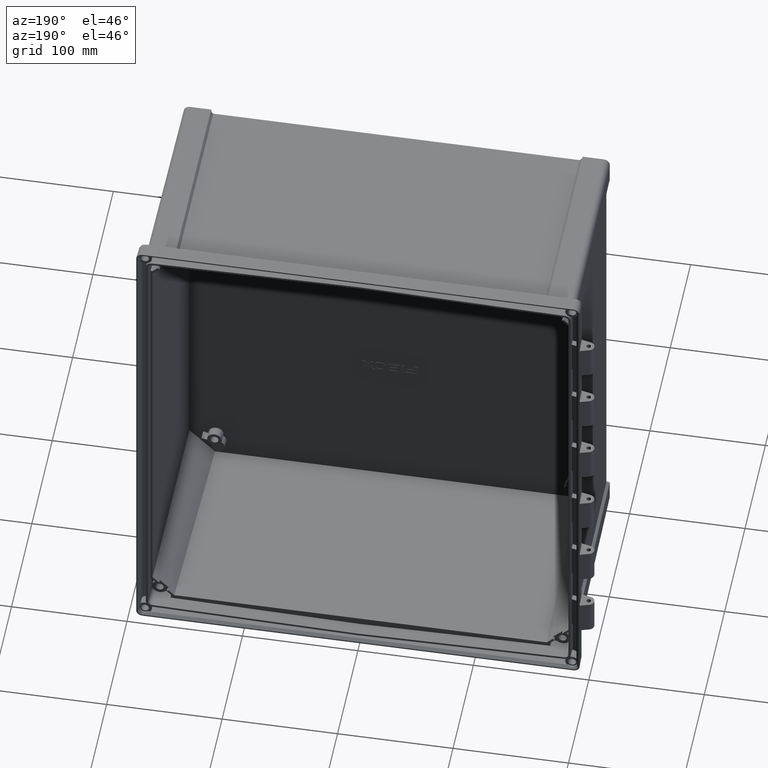
[diagram: clean part render]
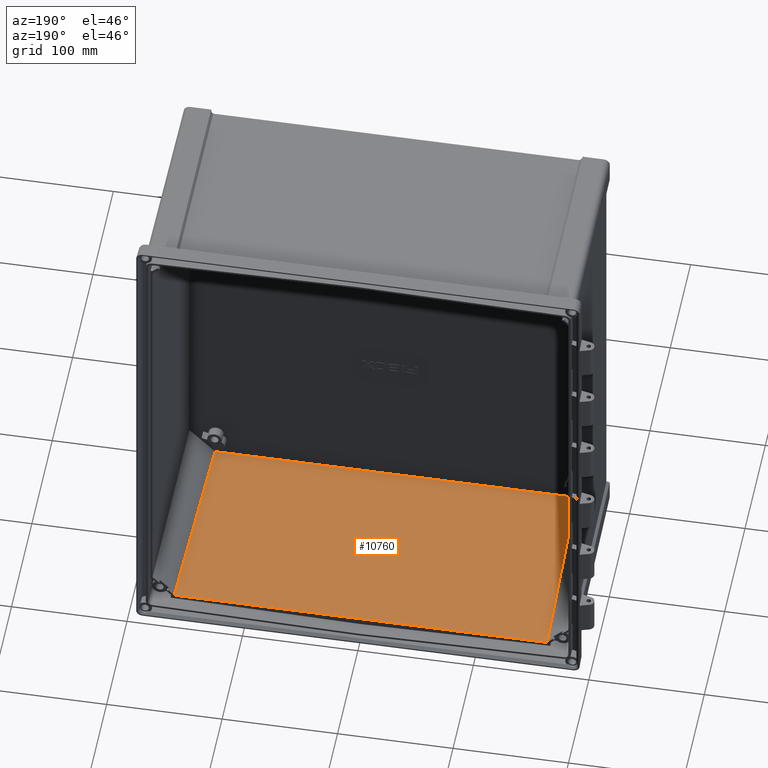
[diagram: same view with one face highlighted and labeled with its STEP entity id]
A machine part, auxiliary view. The second image highlights one B-rep face of the part: STEP entity #10760.
In plain terms, the highlighted planar face has unit normal (0, -0.0087, -1).
Its self-contained STEP definition (entity closure, byte-faithful):
#393 = VERTEX_POINT ( 'NONE', #8348 ) ;
#442 = ORIENTED_EDGE ( 'NONE', *, *, #10921, .T. ) ;
#578 = LINE ( 'NONE', #13766, #5664 ) ;
#1318 = EDGE_CURVE ( 'NONE', #16631, #10464, #7284, .T. ) ;
#2425 = LINE ( 'NONE', #14302, #16530 ) ;
#2750 = CARTESIAN_POINT ( 'NONE',  ( 156.5170099140173400, -185.4000000000000100, -203.6819168607589700 ) ) ;
#3100 = CARTESIAN_POINT ( 'NONE',  ( 30.22312260605986000, -6782.681674747083000, -146.1083119069144200 ) ) ;
#3609 = CARTESIAN_POINT ( 'NONE',  ( -183.5000000000001700, -185.4000000000000100, -203.6819168607589700 ) ) ;
#4504 = FACE_OUTER_BOUND ( 'NONE', #7448, .T. ) ;
#4772 = EDGE_CURVE ( 'NONE', #13230, #393, #2425, .T. ) ;
#5328 = AXIS2_PLACEMENT_3D ( 'NONE', #13564, #12299, #5924 ) ;
#5377 = EDGE_CURVE ( 'NONE', #393, #10464, #578, .T. ) ;
#5529 = VECTOR ( 'NONE', #12317, 1000.000000000000100 ) ;
#5664 = VECTOR ( 'NONE', #6109, 1000.000000000000100 ) ;
#5924 = DIRECTION ( 'NONE',  ( 0.0000000000000000000, 0.9999619230641713100, -0.008726535498373953800 ) ) ;
#6109 = DIRECTION ( 'NONE',  ( -0.02829320860422553100, -0.9995616053478232300, 0.008723041978589085600 ) ) ;
#6886 = VECTOR ( 'NONE', #12419, 1000.000000000000000 ) ;
#7284 = LINE ( 'NONE', #3609, #6886 ) ;
#7339 = CARTESIAN_POINT ( 'NONE',  ( -161.3894390573053400, -13.26352849845436800, -205.1841290895552600 ) ) ;
#7448 = EDGE_LOOP ( 'NONE', ( #7626, #8022, #442, #15582 ) ) ;
#7626 = ORIENTED_EDGE ( 'NONE', *, *, #5377, .F. ) ;
#8022 = ORIENTED_EDGE ( 'NONE', *, *, #4772, .F. ) ;
#8348 = CARTESIAN_POINT ( 'NONE',  ( 161.3894390574940000, -13.26352849845259200, -205.1841290895164900 ) ) ;
#10464 = VERTEX_POINT ( 'NONE', #2750 ) ;
#10760 = ADVANCED_FACE ( 'NONE', ( #4504 ), #15045, .F. ) ;
#10848 = CARTESIAN_POINT ( 'NONE',  ( -156.5170099139370700, -185.4000000000000100, -203.6819168607589700 ) ) ;
#10921 = EDGE_CURVE ( 'NONE', #13230, #16631, #10924, .T. ) ;
#10924 = LINE ( 'NONE', #3100, #5529 ) ;
#12299 = DIRECTION ( 'NONE',  ( 0.0000000000000000000, -0.008726535498373953800, -0.9999619230641713100 ) ) ;
#12317 = DIRECTION ( 'NONE',  ( 0.02829320860422553100, -0.9995616053478232300, 0.008723041978589085600 ) ) ;
#12419 = DIRECTION ( 'NONE',  ( 1.000000000000000000, 0.0000000000000000000, 0.0000000000000000000 ) ) ;
#13230 = VERTEX_POINT ( 'NONE', #7339 ) ;
#13564 = CARTESIAN_POINT ( 'NONE',  ( -183.5000000000001700, 0.02792491359479665200, -205.3001218461946800 ) ) ;
#13766 = CARTESIAN_POINT ( 'NONE',  ( 191.2566690975552300, 1041.906170482868400, -214.3924555493370600 ) ) ;
#14302 = CARTESIAN_POINT ( 'NONE',  ( -183.5000000000001700, -13.26352849845282500, -205.1841290895207000 ) ) ;
#15045 = PLANE ( 'NONE',  #5328 ) ;
#15491 = DIRECTION ( 'NONE',  ( 1.000000000000000000, -0.0000000000000000000, -0.0000000000000000000 ) ) ;
#15582 = ORIENTED_EDGE ( 'NONE', *, *, #1318, .T. ) ;
#16530 = VECTOR ( 'NONE', #15491, 1000.000000000000000 ) ;
#16631 = VERTEX_POINT ( 'NONE', #10848 ) ;